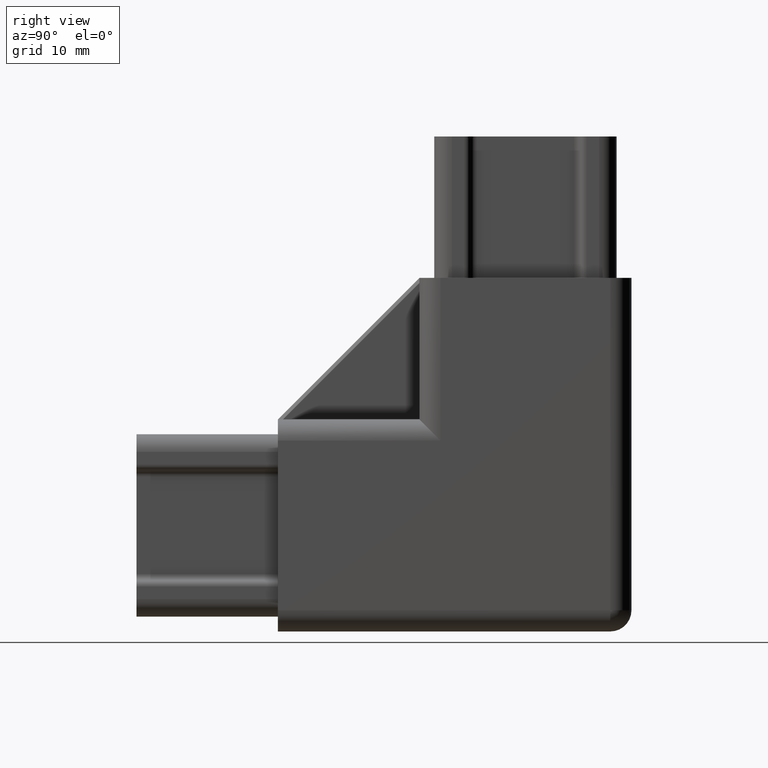
[diagram: clean part render]
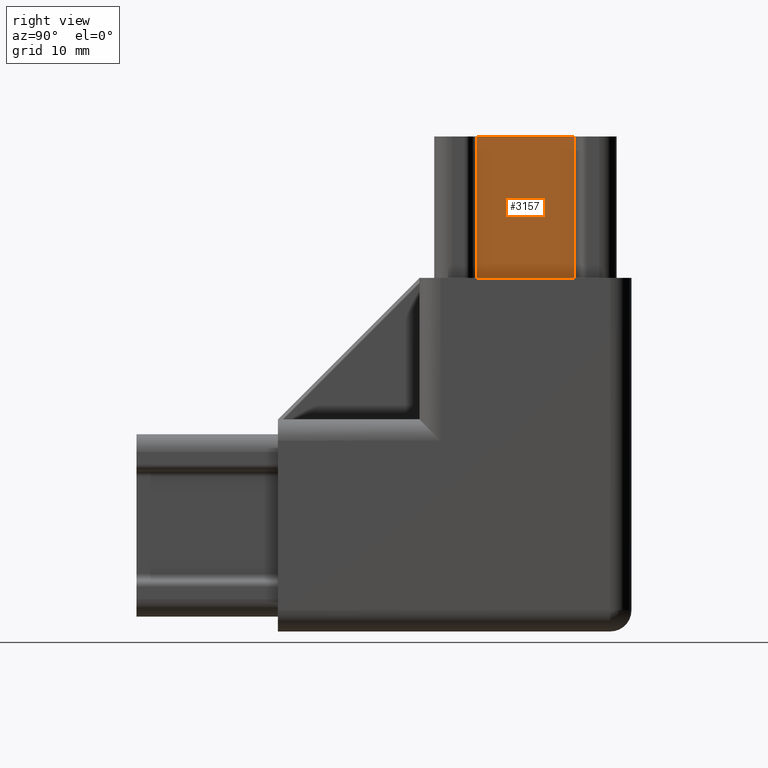
[diagram: same view with one face highlighted and labeled with its STEP entity id]
A machine part, right view. The second image highlights one B-rep face of the part: STEP entity #3157.
In plain terms, the highlighted planar face has unit normal (-1, 0, 0).
Its self-contained STEP definition (entity closure, byte-faithful):
#307 = CARTESIAN_POINT ( 'NONE',  ( 26.90000000000000200, 41.90000000000000600, 69.99999999999998600 ) ) ;
#438 = AXIS2_PLACEMENT_3D ( 'NONE', #9952, #16509, #15173 ) ;
#716 = LINE ( 'NONE', #1561, #11682 ) ;
#850 = ORIENTED_EDGE ( 'NONE', *, *, #6382, .T. ) ;
#1096 = VECTOR ( 'NONE', #15169, 1000.000000000000000 ) ;
#1561 = CARTESIAN_POINT ( 'NONE',  ( 26.90000000000000200, 41.90000000000000600, 69.99999999999998600 ) ) ;
#1913 = DIRECTION ( 'NONE',  ( 0.0000000000000000000, -1.000000000000000000, -2.312964634635743000E-016 ) ) ;
#3157 = ADVANCED_FACE ( 'NONE', ( #15106 ), #7477, .F. ) ;
#4105 = VERTEX_POINT ( 'NONE', #7447 ) ;
#5318 = EDGE_CURVE ( 'NONE', #14849, #4105, #7651, .T. ) ;
#5521 = CARTESIAN_POINT ( 'NONE',  ( 26.90000000000000200, 27.09999999999999800, 49.99999999999999300 ) ) ;
#6222 = DIRECTION ( 'NONE',  ( -0.0000000000000000000, -1.000000000000000000, -0.0000000000000000000 ) ) ;
#6382 = EDGE_CURVE ( 'NONE', #14849, #6814, #716, .T. ) ;
#6814 = VERTEX_POINT ( 'NONE', #307 ) ;
#6900 = EDGE_CURVE ( 'NONE', #16239, #4105, #8067, .T. ) ;
#6953 = EDGE_CURVE ( 'NONE', #6814, #16239, #14321, .T. ) ;
#7447 = CARTESIAN_POINT ( 'NONE',  ( 26.90000000000000200, 28.10000000000000500, 49.99999999999999300 ) ) ;
#7466 = VECTOR ( 'NONE', #1913, 1000.000000000000000 ) ;
#7477 = PLANE ( 'NONE',  #438 ) ;
#7535 = ORIENTED_EDGE ( 'NONE', *, *, #6953, .T. ) ;
#7651 = LINE ( 'NONE', #5521, #7466 ) ;
#8067 = LINE ( 'NONE', #16505, #1096 ) ;
#9952 = CARTESIAN_POINT ( 'NONE',  ( 26.90000000000000200, 27.10000000000000100, 34.07392075870522800 ) ) ;
#10087 = CARTESIAN_POINT ( 'NONE',  ( 26.90000000000000200, 41.90000000000000600, 49.99999999999999300 ) ) ;
#10755 = DIRECTION ( 'NONE',  ( 0.0000000000000000000, -0.0000000000000000000, 1.000000000000000000 ) ) ;
#11682 = VECTOR ( 'NONE', #10755, 1000.000000000000000 ) ;
#11780 = EDGE_LOOP ( 'NONE', ( #7535, #14511, #16448, #850 ) ) ;
#12775 = CARTESIAN_POINT ( 'NONE',  ( 26.90000000000000200, 27.10000000000000100, 69.99999999999998600 ) ) ;
#13704 = CARTESIAN_POINT ( 'NONE',  ( 26.90000000000000200, 28.10000000000000500, 69.99999999999998600 ) ) ;
#13714 = VECTOR ( 'NONE', #6222, 1000.000000000000000 ) ;
#14321 = LINE ( 'NONE', #12775, #13714 ) ;
#14511 = ORIENTED_EDGE ( 'NONE', *, *, #6900, .T. ) ;
#14849 = VERTEX_POINT ( 'NONE', #10087 ) ;
#15106 = FACE_OUTER_BOUND ( 'NONE', #11780, .T. ) ;
#15169 = DIRECTION ( 'NONE',  ( -0.0000000000000000000, 0.0000000000000000000, -1.000000000000000000 ) ) ;
#15173 = DIRECTION ( 'NONE',  ( 0.0000000000000000000, 0.0000000000000000000, 1.000000000000000000 ) ) ;
#16239 = VERTEX_POINT ( 'NONE', #13704 ) ;
#16448 = ORIENTED_EDGE ( 'NONE', *, *, #5318, .F. ) ;
#16505 = CARTESIAN_POINT ( 'NONE',  ( 26.90000000000000200, 28.10000000000000500, 49.99999999999999300 ) ) ;
#16509 = DIRECTION ( 'NONE',  ( -1.000000000000000000, 0.0000000000000000000, 0.0000000000000000000 ) ) ;